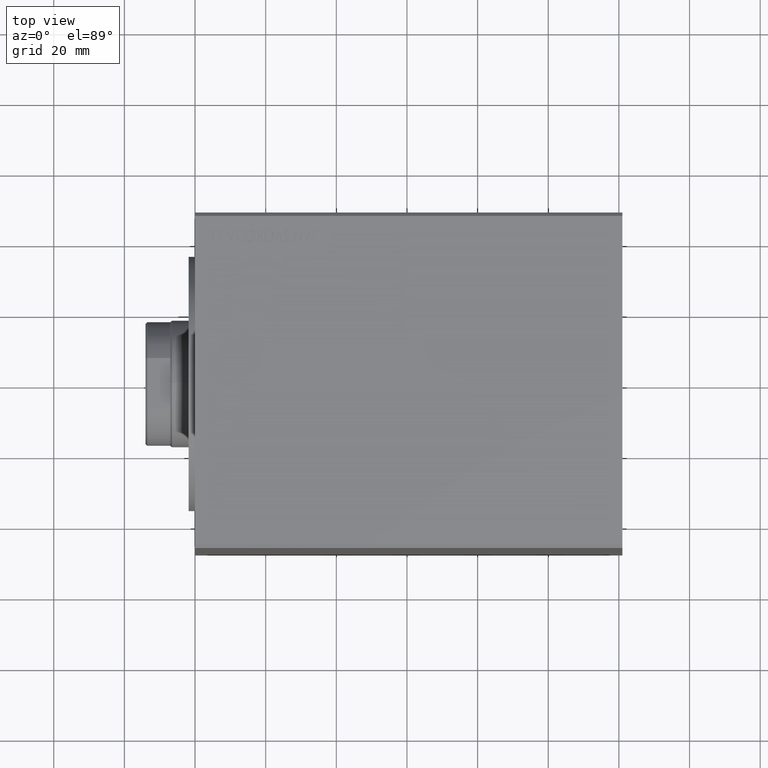
[diagram: clean part render]
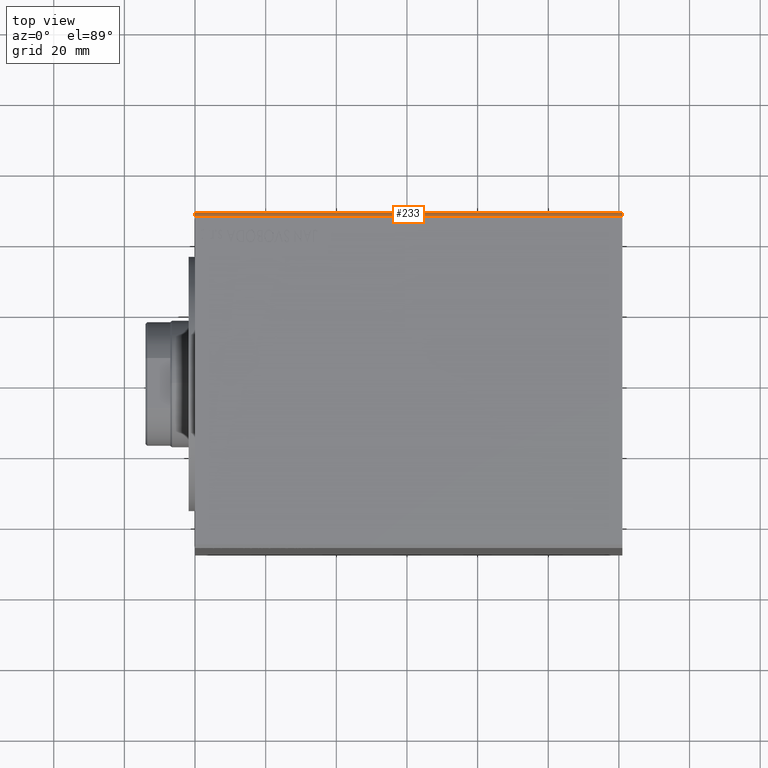
[diagram: same view with one face highlighted and labeled with its STEP entity id]
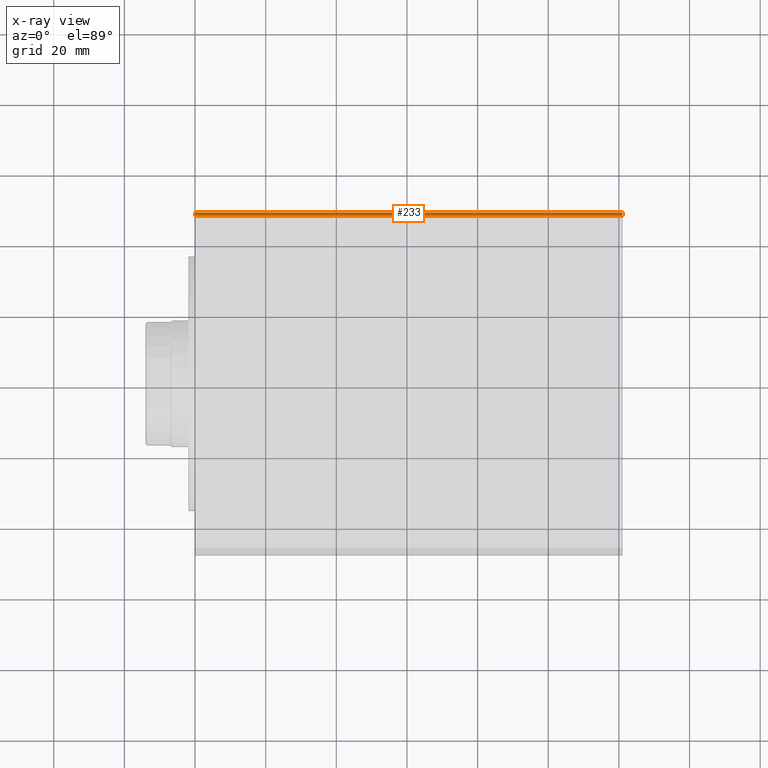
[diagram: x-ray of the same camera — body ghosted, the highlighted face saturated]
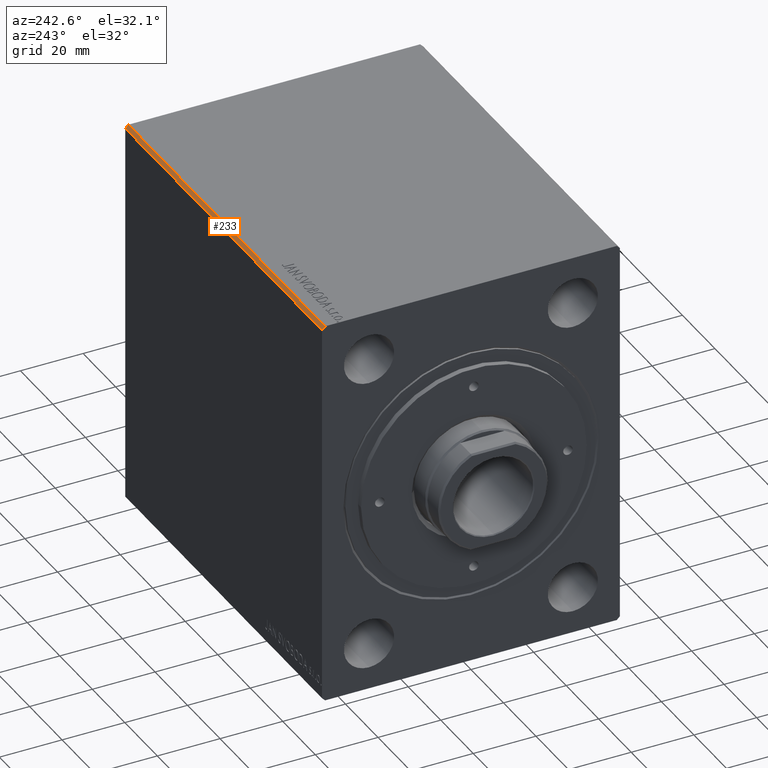
[diagram: same view with one face highlighted and labeled with its STEP entity id]
A machine part, top view. The second image highlights one B-rep face of the part: STEP entity #233.
The next image is the same camera in x-ray: the body ghosted, the highlighted face saturated — about 0% of this face is hidden behind the body in this view.
A second angle (auxiliary view) of the same face is appended — the face is thin or edge-on in the first view.
In plain terms, the highlighted planar face has unit normal (0, -0.7071, -0.7071).
Its self-contained STEP definition (entity closure, byte-faithful):
#233 = ADVANCED_FACE ( 'NONE', ( #38693 ), #25941, .F. ) ;
#1272 = EDGE_CURVE ( 'NONE', #29776, #32032, #24651, .T. ) ;
#2758 = ORIENTED_EDGE ( 'NONE', *, *, #23601, .T. ) ;
#5053 = DIRECTION ( 'NONE',  ( -1.000000000000000000, -0.000000000000000000, -0.000000000000000000 ) ) ;
#5489 = ORIENTED_EDGE ( 'NONE', *, *, #1272, .F. ) ;
#8004 = DIRECTION ( 'NONE',  ( 0.000000000000000000, -0.7071067811865475727, -0.7071067811865475727 ) ) ;
#8225 = DIRECTION ( 'NONE',  ( 0.000000000000000000, 0.7071067811865474617, -0.7071067811865474617 ) ) ;
#8959 = LINE ( 'NONE', #15887, #28695 ) ;
#11880 = ORIENTED_EDGE ( 'NONE', *, *, #41097, .T. ) ;
#14022 = CARTESIAN_POINT ( 'NONE',  ( 121.0000000000000000, 47.50000000000000000, 61.49999999999998579 ) ) ;
#15777 = EDGE_CURVE ( 'NONE', #33238, #29776, #20257, .T. ) ;
#15887 = CARTESIAN_POINT ( 'NONE',  ( 121.0000000000000000, 47.50000000000000000, 61.49999999999998579 ) ) ;
#16278 = VECTOR ( 'NONE', #43769, 1000.000000000000114 ) ;
#16875 = LINE ( 'NONE', #26866, #16278 ) ;
#19441 = DIRECTION ( 'NONE',  ( -1.000000000000000000, -0.000000000000000000, -0.000000000000000000 ) ) ;
#20257 = LINE ( 'NONE', #14022, #25677 ) ;
#23459 = CARTESIAN_POINT ( 'NONE',  ( 0.000000000000000000, 46.50000000000000000, 62.49999999999998579 ) ) ;
#23601 = EDGE_CURVE ( 'NONE', #35588, #32032, #16875, .T. ) ;
#23816 = DIRECTION ( 'NONE',  ( 0.000000000000000000, -0.7071067811865474617, 0.7071067811865474617 ) ) ;
#24651 = LINE ( 'NONE', #32181, #36733 ) ;
#25677 = VECTOR ( 'NONE', #23816, 1000.000000000000114 ) ;
#25941 = PLANE ( 'NONE',  #26256 ) ;
#26026 = CARTESIAN_POINT ( 'NONE',  ( 121.0000000000000000, 47.50000000000000000, 61.49999999999998579 ) ) ;
#26256 = AXIS2_PLACEMENT_3D ( 'NONE', #38467, #8004, #8225 ) ;
#26830 = EDGE_LOOP ( 'NONE', ( #2758, #5489, #37325, #11880 ) ) ;
#26866 = CARTESIAN_POINT ( 'NONE',  ( 0.000000000000000000, 47.50000000000000000, 61.49999999999998579 ) ) ;
#28665 = CARTESIAN_POINT ( 'NONE',  ( 121.0000000000000000, 46.50000000000000000, 62.49999999999998579 ) ) ;
#28695 = VECTOR ( 'NONE', #19441, 1000.000000000000000 ) ;
#29744 = CARTESIAN_POINT ( 'NONE',  ( 0.000000000000000000, 47.50000000000000000, 61.49999999999998579 ) ) ;
#29776 = VERTEX_POINT ( 'NONE', #28665 ) ;
#32032 = VERTEX_POINT ( 'NONE', #23459 ) ;
#32181 = CARTESIAN_POINT ( 'NONE',  ( 121.0000000000000000, 46.50000000000000000, 62.49999999999998579 ) ) ;
#33238 = VERTEX_POINT ( 'NONE', #26026 ) ;
#35588 = VERTEX_POINT ( 'NONE', #29744 ) ;
#36733 = VECTOR ( 'NONE', #5053, 1000.000000000000000 ) ;
#37325 = ORIENTED_EDGE ( 'NONE', *, *, #15777, .F. ) ;
#38467 = CARTESIAN_POINT ( 'NONE',  ( 121.0000000000000000, 47.50000000000000000, 61.49999999999998579 ) ) ;
#38693 = FACE_OUTER_BOUND ( 'NONE', #26830, .T. ) ;
#41097 = EDGE_CURVE ( 'NONE', #33238, #35588, #8959, .T. ) ;
#43769 = DIRECTION ( 'NONE',  ( 0.000000000000000000, -0.7071067811865474617, 0.7071067811865474617 ) ) ;